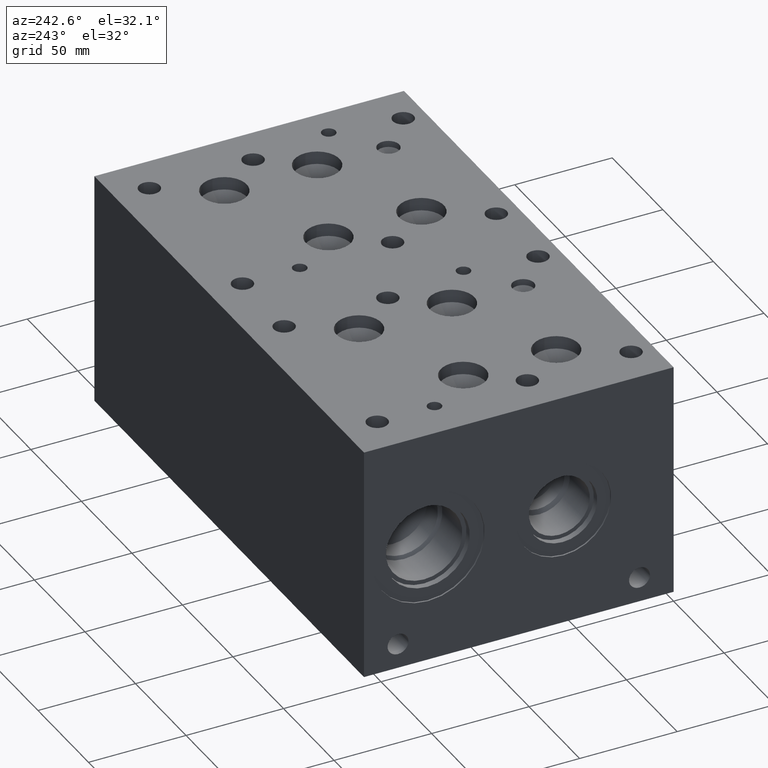
[diagram: clean part render]
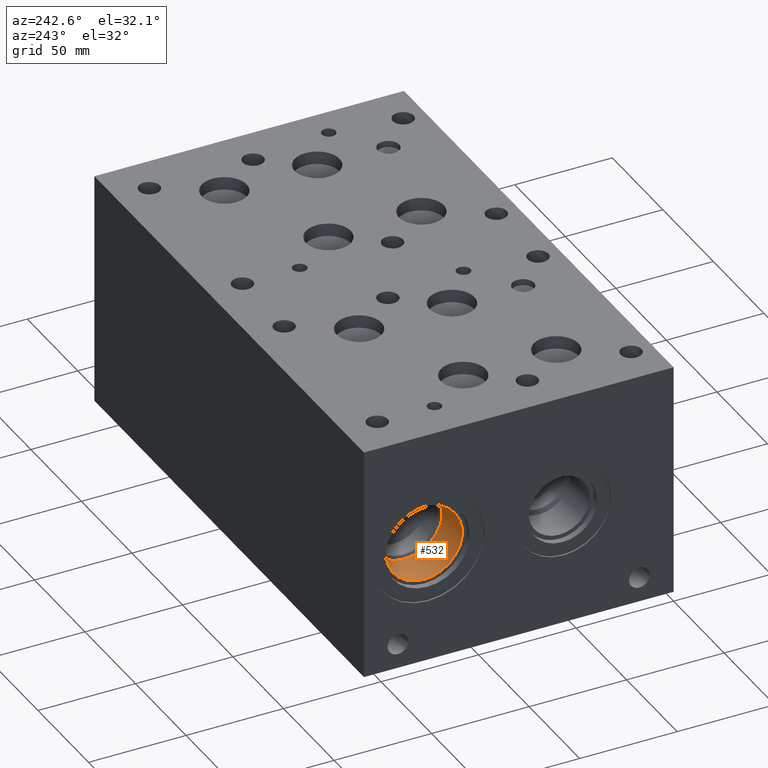
[diagram: same view with one face highlighted and labeled with its STEP entity id]
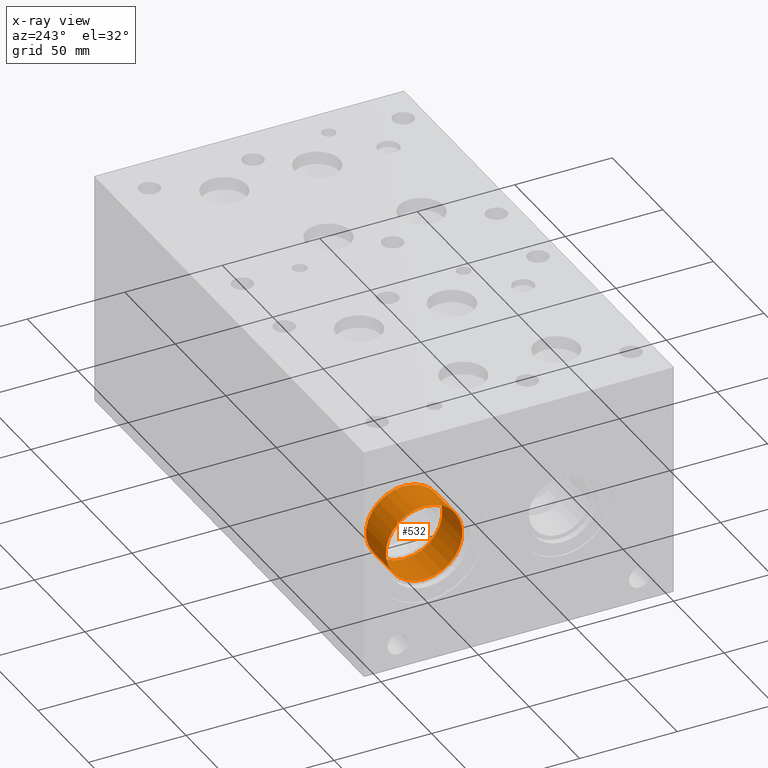
[diagram: x-ray of the same camera — body ghosted, the highlighted face saturated]
A machine part, auxiliary view. The second image highlights one B-rep face of the part: STEP entity #532.
The next image is the same camera in x-ray: the body ghosted, the highlighted face saturated — about 0% of this face is hidden behind the body in this view.
In plain terms, the highlighted cylindrical surface (bore or boss wall) has radius 19.6088 mm, axis along (-1, 0, 0).
Its self-contained STEP definition (entity closure, byte-faithful):
#498=CARTESIAN_POINT('',(23.807054000000001,125.831599999999990,79.933800000000005));
#499=VERTEX_POINT('',#498);
#500=CARTESIAN_POINT('',(23.807054000000001,125.831599999999990,60.325000000000003));
#501=DIRECTION('',(-1.0,0.0,0.0));
#502=DIRECTION('',(0.0,0.0,1.0));
#503=AXIS2_PLACEMENT_3D('',#500,#501,#502);
#504=CIRCLE('',#503,19.608799999999995);
#505=EDGE_CURVE('',#499,#499,#504,.T.);
#513=CARTESIAN_POINT('',(13.935527000000000,125.831599999999990,60.325000000000003));
#514=DIRECTION('',(-1.0,0.0,0.0));
#515=DIRECTION('',(0.0,0.0,1.0));
#516=AXIS2_PLACEMENT_3D('',#513,#514,#515);
#517=CYLINDRICAL_SURFACE('',#516,19.608799999999995);
#518=CARTESIAN_POINT('',(4.064000000000000,125.831599999999990,79.933800000000005));
#519=VERTEX_POINT('',#518);
#520=CARTESIAN_POINT('',(4.064000000000000,125.831599999999990,60.325000000000003));
#521=DIRECTION('',(-1.0,0.0,0.0));
#522=DIRECTION('',(0.0,0.0,1.0));
#523=AXIS2_PLACEMENT_3D('',#520,#521,#522);
#524=CIRCLE('',#523,19.608799999999995);
#525=EDGE_CURVE('',#519,#519,#524,.T.);
#526=ORIENTED_EDGE('',*,*,#525,.T.);
#527=EDGE_LOOP('',(#526));
#528=FACE_OUTER_BOUND('',#527,.T.);
#529=ORIENTED_EDGE('',*,*,#505,.F.);
#530=EDGE_LOOP('',(#529));
#531=FACE_BOUND('',#530,.T.);
#532=ADVANCED_FACE('',(#528,#531),#517,.F.);